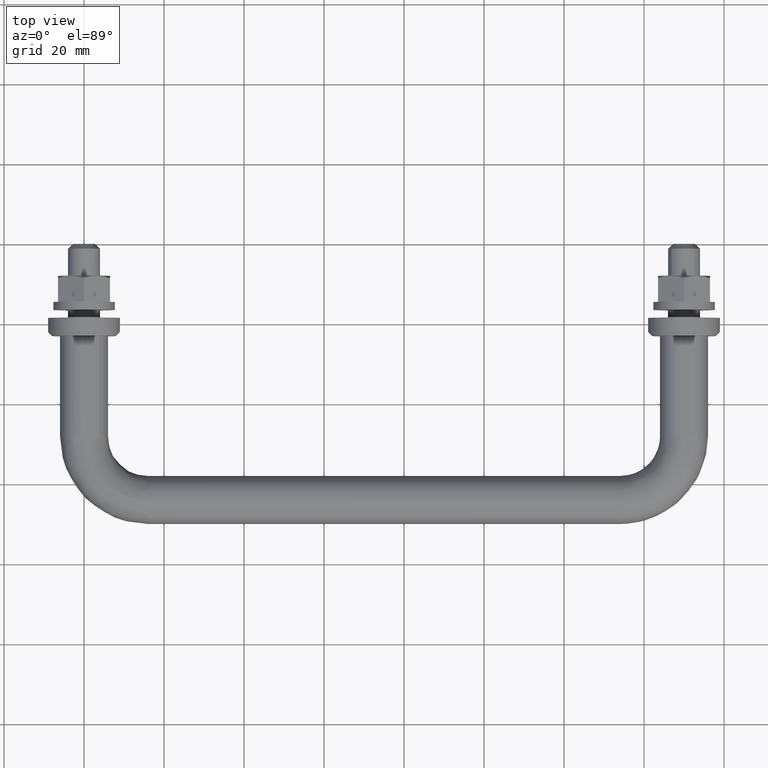
[diagram: clean part render]
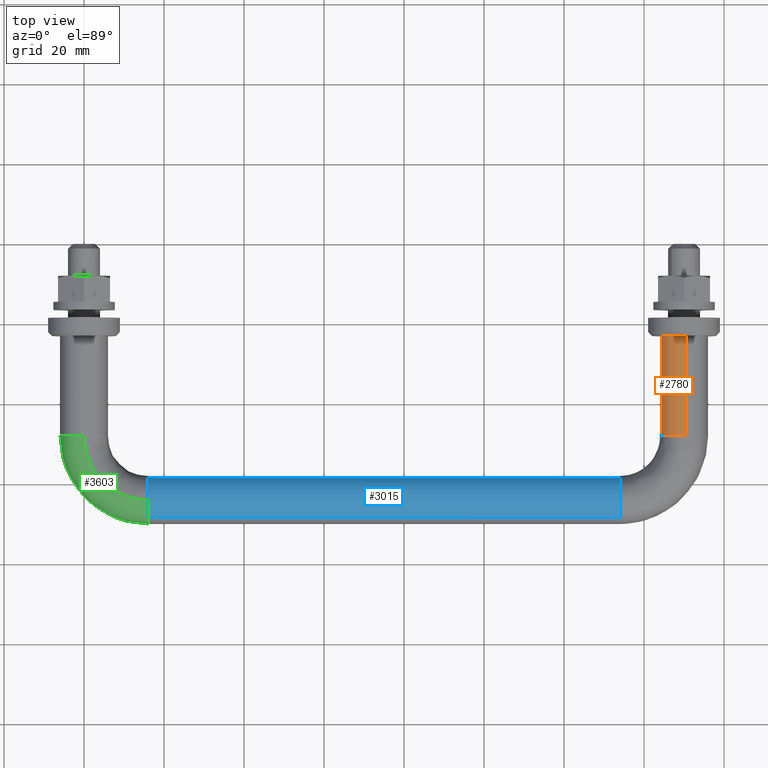
[diagram: same view with three faces highlighted in distinct colors, each labeled with its STEP entity id]
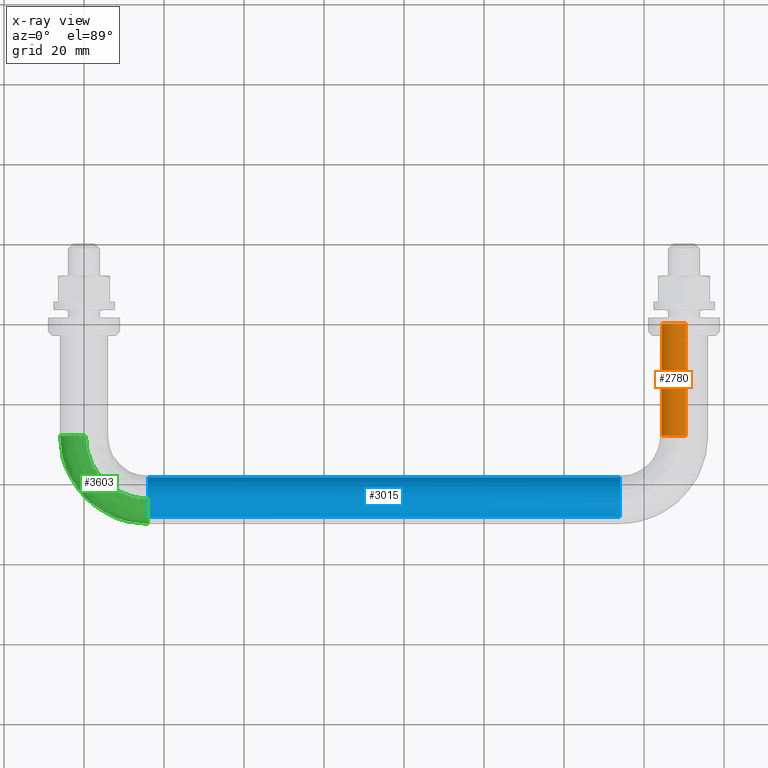
[diagram: x-ray of the same camera — body ghosted, the three highlighted faces saturated]
A machine part, top view with three faces highlighted in distinct colors.
The next image is the same camera in x-ray (body ghosted, the three faces saturated) — at least one of them is partly hidden behind the body in this view.
Their STEP definitions:

[orange] entity #2780 — the highlighted face is a freeform B-spline surface patch.
#2716=CARTESIAN_POINT('',(144.420813481346610,-28.700000000797552,2.207414276948618));
#2717=CARTESIAN_POINT('',(146.051642595505910,-28.700000000797552,6.329295657784252));
#2718=CARTESIAN_POINT('',(150.470754574367110,-28.700000000797559,5.981504002398766));
#2719=CARTESIAN_POINT('',(144.420813481346610,0.717500000019957,2.207414276948618));
#2720=CARTESIAN_POINT('',(146.051642595505910,0.717500000019957,6.329295657784252));
#2721=CARTESIAN_POINT('',(150.470754574367110,0.717500000019957,5.981504002398766));
#2729=(BOUNDED_SURFACE()B_SPLINE_SURFACE(2,1,((#2716,#2719),(#2717,#2720),(#2718,#2721)),.UNSPECIFIED.,.F.,.F.,.U.)B_SPLINE_SURFACE_WITH_KNOTS((3,3),(2,2),(0.0,7.898692343319910),(0.0,29.417500000817508),.UNSPECIFIED.)GEOMETRIC_REPRESENTATION_ITEM()RATIONAL_B_SPLINE_SURFACE(((0.906274169979695,0.906274169979695),(0.765685424949238,0.765685424949238),(1.0,1.0)))REPRESENTATION_ITEM('')SURFACE());
#2730=CARTESIAN_POINT('',(150.470754574535900,-28.0,5.981504002385480));
#2731=VERTEX_POINT('',#2730);
#2732=CARTESIAN_POINT('',(144.420813481355000,-28.0,2.207414276969677));
#2733=VERTEX_POINT('',#2732);
#2734=CARTESIAN_POINT('',(150.470754574535850,-27.999999999999996,5.981504002385480));
#2735=CARTESIAN_POINT('',(150.235740642215600,-27.999999999999996,6.0));
#2736=CARTESIAN_POINT('',(150.0,-28.0,6.0));
#2737=CARTESIAN_POINT('',(145.921356229614560,-27.999999999999993,5.999999999999999));
#2738=CARTESIAN_POINT('',(144.420813481354910,-28.000000000000007,2.207414276969677));
#2746=(BOUNDED_CURVE()B_SPLINE_CURVE(2,(#2734,#2735,#2736,#2737,#2738),.UNSPECIFIED.,.F.,.U.)B_SPLINE_CURVE_WITH_KNOTS((3,2,3),(0.736331300623090,0.750000000000000,0.937532549938274),.UNSPECIFIED.)CURVE()GEOMETRIC_REPRESENTATION_ITEM()RATIONAL_B_SPLINE_CURVE((0.969723356151621,0.983986122570014,1.0,0.780291951265138,0.890203187499966))REPRESENTATION_ITEM(''));
#2747=EDGE_CURVE('',#2731,#2733,#2746,.T.);
#2748=ORIENTED_EDGE('',*,*,#2747,.F.);
#2749=CARTESIAN_POINT('',(150.470754574535900,1.705580E-014,5.981504002385480));
#2750=VERTEX_POINT('',#2749);
#2751=CARTESIAN_POINT('',(150.470754574535900,-28.0,5.981504002385480));
#2752=CARTESIAN_POINT('',(150.470754574535900,1.705580E-014,5.981504002385480));
#2753=QUASI_UNIFORM_CURVE('',1,(#2751,#2752),.UNSPECIFIED.,.F.,.U.);
#2754=EDGE_CURVE('',#2731,#2750,#2753,.T.);
#2755=ORIENTED_EDGE('',*,*,#2754,.T.);
#2756=CARTESIAN_POINT('',(144.420813481355000,1.706515E-014,2.207414276969677));
#2757=VERTEX_POINT('',#2756);
#2758=CARTESIAN_POINT('',(150.470754574535990,1.705580E-014,5.981504002385480));
#2759=CARTESIAN_POINT('',(150.235740642215720,1.734723E-014,6.000000000000001));
#2760=CARTESIAN_POINT('',(150.0,1.734723E-014,6.0));
#2761=CARTESIAN_POINT('',(145.921356229614620,1.734723E-014,6.0));
#2762=CARTESIAN_POINT('',(144.420813481354880,1.706515E-014,2.207414276969677));
#2770=(BOUNDED_CURVE()B_SPLINE_CURVE(2,(#2758,#2759,#2760,#2761,#2762),.UNSPECIFIED.,.F.,.U.)B_SPLINE_CURVE_WITH_KNOTS((3,2,3),(0.736331300623089,0.750000000000000,0.937532549938273),.UNSPECIFIED.)CURVE()GEOMETRIC_REPRESENTATION_ITEM()RATIONAL_B_SPLINE_CURVE((0.969723356151619,0.983986122570013,1.0,0.780291951265139,0.890203187499965))REPRESENTATION_ITEM(''));
#2771=EDGE_CURVE('',#2750,#2757,#2770,.T.);
#2772=ORIENTED_EDGE('',*,*,#2771,.T.);
#2773=CARTESIAN_POINT('',(144.420813481355000,-28.0,2.207414276969677));
#2774=CARTESIAN_POINT('',(144.420813481355000,1.706515E-014,2.207414276969677));
#2775=QUASI_UNIFORM_CURVE('',1,(#2773,#2774),.UNSPECIFIED.,.F.,.U.);
#2776=EDGE_CURVE('',#2733,#2757,#2775,.T.);
#2777=ORIENTED_EDGE('',*,*,#2776,.F.);
#2778=EDGE_LOOP('',(#2748,#2755,#2772,#2777));
#2779=FACE_OUTER_BOUND('',#2778,.T.);
#2780=ADVANCED_FACE('',(#2779),#2729,.T.);

[blue] entity #3015 — the highlighted face is a freeform B-spline surface patch.
#2932=CARTESIAN_POINT('',(13.049999999366786,-38.342843064116067,1.999143667368710));
#2933=CARTESIAN_POINT('',(13.049999999366788,-38.841979626746074,3.411595365225981));
#2934=CARTESIAN_POINT('',(13.049999999366779,-39.946458754306043,4.423664020860743));
#2935=CARTESIAN_POINT('',(13.049999999366785,-44.370122775166784,8.477205266554705));
#2936=CARTESIAN_POINT('',(13.049999999366779,-48.423664020860741,4.053541245693961));
#2937=CARTESIAN_POINT('',(137.023750000015890,-38.342843064116060,1.999143667368710));
#2938=CARTESIAN_POINT('',(137.023750000015810,-38.841979626746046,3.411595365225981));
#2939=CARTESIAN_POINT('',(137.023750000015810,-39.946458754306022,4.423664020860743));
#2940=CARTESIAN_POINT('',(137.023750000015840,-44.370122775166770,8.477205266554705));
#2941=CARTESIAN_POINT('',(137.023750000015810,-48.423664020860727,4.053541245693961));
#2949=(BOUNDED_SURFACE()B_SPLINE_SURFACE(2,1,((#2932,#2937),(#2933,#2938),(#2934,#2939),(#2935,#2940),(#2936,#2941)),.UNSPECIFIED.,.F.,.F.,.U.)B_SPLINE_SURFACE_WITH_KNOTS((3,2,3),(2,2),(0.0,3.181160159025369,13.122285655979651),(0.0,123.973750000649100),.UNSPECIFIED.)GEOMETRIC_REPRESENTATION_ITEM()RATIONAL_B_SPLINE_SURFACE(((0.872532871172385,0.872532871172385),(0.906274169979695,0.906274169979695),(1.0,1.0),(0.707106781186548,0.707106781186548),(1.0,1.0)))REPRESENTATION_ITEM('')SURFACE());
#2950=CARTESIAN_POINT('',(134.0,-48.423666147043868,4.053538925369788));
#2951=VERTEX_POINT('',#2950);
#2952=CARTESIAN_POINT('',(134.0,-38.342843064154778,1.999143667478238));
#2953=VERTEX_POINT('',#2952);
#2954=CARTESIAN_POINT('',(134.000000000000030,-48.423666147043868,4.053538925369788));
#2955=CARTESIAN_POINT('',(133.999999999999940,-46.640065063585460,6.0));
#2956=CARTESIAN_POINT('',(134.0,-44.0,6.0));
#2957=CARTESIAN_POINT('',(134.000000000000090,-39.756678086383872,6.0));
#2958=CARTESIAN_POINT('',(134.000000000000060,-38.342843064154778,1.999143667478238));
#2966=(BOUNDED_CURVE()B_SPLINE_CURVE(2,(#2954,#2955,#2956,#2957,#2958),.UNSPECIFIED.,.F.,.U.)B_SPLINE_CURVE_WITH_KNOTS((3,2,3),(0.618415129901655,0.750000000000000,0.943388783513534),.UNSPECIFIED.)CURVE()GEOMETRIC_REPRESENTATION_ITEM()RATIONAL_B_SPLINE_CURVE((0.853959790611737,0.845838735398983,1.0,0.773430946857213,0.897389202267200))REPRESENTATION_ITEM(''));
#2967=EDGE_CURVE('',#2951,#2953,#2966,.T.);
#2968=ORIENTED_EDGE('',*,*,#2967,.T.);
#2969=CARTESIAN_POINT('',(16.0,-38.342843064154792,1.999143667478240));
#2970=VERTEX_POINT('',#2969);
#2971=CARTESIAN_POINT('',(16.0,-38.342843064154792,1.999143667478240));
#2972=CARTESIAN_POINT('',(134.0,-38.342843064154778,1.999143667478238));
#2973=QUASI_UNIFORM_CURVE('',1,(#2971,#2972),.UNSPECIFIED.,.F.,.U.);
#2974=EDGE_CURVE('',#2970,#2953,#2973,.T.);
#2975=ORIENTED_EDGE('',*,*,#2974,.F.);
#2976=CARTESIAN_POINT('',(15.999999999937650,-44.075396240160970,5.999526265212078));
#2977=VERTEX_POINT('',#2976);
#2978=CARTESIAN_POINT('',(15.999999999937648,-44.075396240160970,5.999526265212078));
#2979=CARTESIAN_POINT('',(16.000000000000004,-44.037699608812304,6.000000000000001));
#2980=CARTESIAN_POINT('',(16.0,-44.0,6.0));
#2981=CARTESIAN_POINT('',(15.999999999999995,-39.756678086383836,6.0));
#2982=CARTESIAN_POINT('',(16.000000000000004,-38.342843064154792,1.999143667478241));
#2990=(BOUNDED_CURVE()B_SPLINE_CURVE(2,(#2978,#2979,#2980,#2981,#2982),.UNSPECIFIED.,.F.,.U.)B_SPLINE_CURVE_WITH_KNOTS((3,2,3),(0.747784295871259,0.750000000000000,0.943388783513534),.UNSPECIFIED.)CURVE()GEOMETRIC_REPRESENTATION_ITEM()RATIONAL_B_SPLINE_CURVE((0.994854295527851,0.997404141143179,1.0,0.773430946857212,0.897389202267201))REPRESENTATION_ITEM(''));
#2991=EDGE_CURVE('',#2977,#2970,#2990,.T.);
#2992=ORIENTED_EDGE('',*,*,#2991,.F.);
#2993=CARTESIAN_POINT('',(15.999999999983400,-48.423666334145452,4.053538721060258));
#2994=VERTEX_POINT('',#2993);
#2995=CARTESIAN_POINT('',(15.999999999983405,-48.423666334145452,4.053538721060259));
#2996=CARTESIAN_POINT('',(15.999999999964956,-46.670382015393436,5.966914994870200));
#2997=CARTESIAN_POINT('',(15.999999999937653,-44.075396240160970,5.999526265212078));
#3005=(BOUNDED_CURVE()B_SPLINE_CURVE(2,(#2995,#2996,#2997),.UNSPECIFIED.,.F.,.U.)B_SPLINE_CURVE_WITH_KNOTS((3,3),(0.618415122927454,0.747784295871258),.UNSPECIFIED.)CURVE()GEOMETRIC_REPRESENTATION_ITEM()RATIONAL_B_SPLINE_CURVE((0.853959791472594,0.845975474519957,0.994854295527850))REPRESENTATION_ITEM(''));
#3006=EDGE_CURVE('',#2994,#2977,#3005,.T.);
#3007=ORIENTED_EDGE('',*,*,#3006,.F.);
#3008=CARTESIAN_POINT('',(15.999999999983400,-48.423666334145452,4.053538721060258));
#3009=CARTESIAN_POINT('',(134.0,-48.423666147043868,4.053538925369788));
#3010=QUASI_UNIFORM_CURVE('',1,(#3008,#3009),.UNSPECIFIED.,.F.,.U.);
#3011=EDGE_CURVE('',#2994,#2951,#3010,.T.);
#3012=ORIENTED_EDGE('',*,*,#3011,.T.);
#3013=EDGE_LOOP('',(#2968,#2975,#2992,#3007,#3012));
#3014=FACE_OUTER_BOUND('',#3013,.T.);
#3015=ADVANCED_FACE('',(#3014),#2949,.T.);

[green] entity #3603 — the highlighted face is a freeform B-spline surface patch.
#2976=CARTESIAN_POINT('',(15.999999999937650,-44.075396240160970,5.999526265212078));
#2977=VERTEX_POINT('',#2976);
#2993=CARTESIAN_POINT('',(15.999999999983400,-48.423666334145452,4.053538721060258));
#2994=VERTEX_POINT('',#2993);
#2995=CARTESIAN_POINT('',(15.999999999983405,-48.423666334145452,4.053538721060259));
#2996=CARTESIAN_POINT('',(15.999999999964956,-46.670382015393436,5.966914994870200));
#2997=CARTESIAN_POINT('',(15.999999999937653,-44.075396240160970,5.999526265212078));
#3005=(BOUNDED_CURVE()B_SPLINE_CURVE(2,(#2995,#2996,#2997),.UNSPECIFIED.,.F.,.U.)B_SPLINE_CURVE_WITH_KNOTS((3,3),(0.618415122927454,0.747784295871258),.UNSPECIFIED.)CURVE()GEOMETRIC_REPRESENTATION_ITEM()RATIONAL_B_SPLINE_CURVE((0.853959791472594,0.845975474519957,0.994854295527850))REPRESENTATION_ITEM(''));
#3006=EDGE_CURVE('',#2994,#2977,#3005,.T.);
#3114=CARTESIAN_POINT('',(16.0,-49.999999999999993,0.0));
#3115=VERTEX_POINT('',#3114);
#3116=CARTESIAN_POINT('',(16.0,-49.999999999999993,0.0));
#3117=CARTESIAN_POINT('',(16.000000000000007,-49.999999999999993,2.333270420019758));
#3118=CARTESIAN_POINT('',(15.999999999983405,-48.423666334145452,4.053538721060259));
#3126=(BOUNDED_CURVE()B_SPLINE_CURVE(2,(#3116,#3117,#3118),.UNSPECIFIED.,.F.,.U.)B_SPLINE_CURVE_WITH_KNOTS((3,3),(0.500000000000000,0.618415122927454),.UNSPECIFIED.)CURVE()GEOMETRIC_REPRESENTATION_ITEM()RATIONAL_B_SPLINE_CURVE((1.0,0.861268053958349,0.853959791472594))REPRESENTATION_ITEM(''));
#3127=EDGE_CURVE('',#3115,#2994,#3126,.T.);
#3129=CARTESIAN_POINT('',(15.999999999382229,-43.581600489776719,-5.985394042988725));
#3130=VERTEX_POINT('',#3129);
#3131=CARTESIAN_POINT('',(15.999999999382229,-43.581600489776719,-5.985394042988726));
#3132=CARTESIAN_POINT('',(15.999999999999998,-43.790545303978277,-6.000000000000002));
#3133=CARTESIAN_POINT('',(16.0,-44.0,-6.0));
#3134=CARTESIAN_POINT('',(15.999999999999998,-49.999999999999986,-6.0));
#3135=CARTESIAN_POINT('',(16.0,-49.999999999999993,0.0));
#3143=(BOUNDED_CURVE()B_SPLINE_CURVE(2,(#3131,#3132,#3133,#3134,#3135),.UNSPECIFIED.,.F.,.U.)B_SPLINE_CURVE_WITH_KNOTS((3,2,3),(0.237833686490849,0.250000000000000,0.500000000000000),.UNSPECIFIED.)CURVE()GEOMETRIC_REPRESENTATION_ITEM()RATIONAL_B_SPLINE_CURVE((0.972879876293399,0.985746277100845,1.0,0.707106781186548,1.0))REPRESENTATION_ITEM(''));
#3144=EDGE_CURVE('',#3130,#3115,#3143,.T.);
#3200=CARTESIAN_POINT('',(-0.075396240607989,-28.000000000148141,5.999526265206460));
#3201=VERTEX_POINT('',#3200);
#3258=CARTESIAN_POINT('',(-3.735087819827943,-28.0,-4.695648941112710));
#3259=VERTEX_POINT('',#3258);
#3265=CARTESIAN_POINT('',(-5.999999999999996,-28.0,0.0));
#3266=VERTEX_POINT('',#3265);
#3267=CARTESIAN_POINT('',(-3.735087819827943,-28.000000000000004,-4.695648941112710));
#3268=CARTESIAN_POINT('',(-5.999999999999997,-28.000000000000007,-2.894056444901910));
#3269=CARTESIAN_POINT('',(-5.999999999999996,-28.0,0.0));
#3277=(BOUNDED_CURVE()B_SPLINE_CURVE(2,(#3267,#3268,#3269),.UNSPECIFIED.,.F.,.U.)B_SPLINE_CURVE_WITH_KNOTS((3,3),(0.357863877391589,0.500000000000000),.UNSPECIFIED.)CURVE()GEOMETRIC_REPRESENTATION_ITEM()RATIONAL_B_SPLINE_CURVE((0.856305618644024,0.833477174158236,1.0))REPRESENTATION_ITEM(''));
#3278=EDGE_CURVE('',#3259,#3266,#3277,.T.);
#3280=CARTESIAN_POINT('',(-5.999999999999996,-28.0,0.0));
#3281=CARTESIAN_POINT('',(-5.999999999999996,-28.0,5.925071576860362));
#3282=CARTESIAN_POINT('',(-0.075396240607989,-28.000000000148141,5.999526265206460));
#3290=(BOUNDED_CURVE()B_SPLINE_CURVE(2,(#3280,#3281,#3282),.UNSPECIFIED.,.F.,.U.)B_SPLINE_CURVE_WITH_KNOTS((3,3),(0.500000000000000,0.747784295845050),.UNSPECIFIED.)CURVE()GEOMETRIC_REPRESENTATION_ITEM()RATIONAL_B_SPLINE_CURVE((1.0,0.709702640074074,0.994854295467530))REPRESENTATION_ITEM(''));
#3291=EDGE_CURVE('',#3266,#3201,#3290,.T.);
#3333=CARTESIAN_POINT('',(0.418399511246949,-28.000000001151069,-5.985394042917166));
#3334=VERTEX_POINT('',#3333);
#3348=CARTESIAN_POINT('',(0.418399511246949,-28.000000001151072,-5.985394042917166));
#3349=CARTESIAN_POINT('',(0.209454697049138,-27.999999999999996,-5.999999999999999));
#3350=CARTESIAN_POINT('',(3.428898E-015,-28.0,-6.0));
#3351=CARTESIAN_POINT('',(-2.095293800532434,-28.0,-6.0));
#3352=CARTESIAN_POINT('',(-3.735087819827943,-28.000000000000004,-4.695648941112710));
#3360=(BOUNDED_CURVE()B_SPLINE_CURVE(2,(#3348,#3349,#3350,#3351,#3352),.UNSPECIFIED.,.F.,.U.)B_SPLINE_CURVE_WITH_KNOTS((3,2,3),(0.237833686432021,0.250000000000000,0.357863877391589),.UNSPECIFIED.)CURVE()GEOMETRIC_REPRESENTATION_ITEM()RATIONAL_B_SPLINE_CURVE((0.972879876168973,0.985746277031924,1.0,0.873629607028311,0.856305618644024))REPRESENTATION_ITEM(''));
#3361=EDGE_CURVE('',#3334,#3259,#3360,.T.);
#3534=CARTESIAN_POINT('',(0.546685115469526,-26.922813507950277,-5.979047656540755));
#3535=CARTESIAN_POINT('',(-0.691926059755248,-44.691926518107586,-5.979047656540754));
#3536=CARTESIAN_POINT('',(17.077186916390389,-43.453314854951444,-5.979047656540756));
#3537=CARTESIAN_POINT('',(0.501270332774384,-26.919647831794439,-5.982230005926366));
#3538=CARTESIAN_POINT('',(-0.740980919533328,-44.740981379232686,-5.982230005926365));
#3539=CARTESIAN_POINT('',(17.080352593793297,-43.498729637559656,-5.982230005926369));
#3540=CARTESIAN_POINT('',(0.285231963537030,-26.904588693037091,-5.997368459328781));
#3541=CARTESIAN_POINT('',(-0.974335155328387,-44.974335621435536,-5.997368459328783));
#3542=CARTESIAN_POINT('',(17.095411738482944,-43.714768006383508,-5.997368459328781));
#3543=CARTESIAN_POINT('',(0.113943897119562,-26.892648912299236,-5.999526265222896));
#3544=CARTESIAN_POINT('',(-1.159352270486051,-45.159352741673686,-5.999526265222896));
#3545=CARTESIAN_POINT('',(17.107351523924276,-43.886056072473103,-5.999526265222895));
#3546=CARTESIAN_POINT('',(-5.871059703111108,-26.475459132552292,-6.074922504523007));
#3547=CARTESIAN_POINT('',(-7.624064748611073,-51.624065397316620,-6.074922504523005));
#3548=CARTESIAN_POINT('',(17.524541468016576,-49.871059661247941,-6.074922504523006));
#3549=CARTESIAN_POINT('',(-5.946273435613747,-26.470216295188671,-0.075396239300112));
#3550=CARTESIAN_POINT('',(-7.705306997992081,-51.705307648928503,-0.075396239300112));
#3551=CARTESIAN_POINT('',(17.529784307445532,-49.946273393606596,-0.075396239300112));
#3552=CARTESIAN_POINT('',(-6.021487168116381,-26.464973457825039,5.924130025922782));
#3553=CARTESIAN_POINT('',(-7.786549247373084,-51.786549900540393,5.924130025922781));
#3554=CARTESIAN_POINT('',(17.535027146874498,-50.021487125965294,5.924130025922783));
#3555=CARTESIAN_POINT('',(0.007550832205726,-26.885232692981290,6.000080989729094));
#3556=CARTESIAN_POINT('',(-1.274272932239360,-45.274273406582665,6.000080989729093));
#3557=CARTESIAN_POINT('',(17.114767746163732,-43.992449137183286,6.000080989729092));
#3558=CARTESIAN_POINT('',(0.051317652982240,-26.888283496546265,6.000632343397877));
#3559=CARTESIAN_POINT('',(-1.226998121512281,-45.226998594557429,6.000632343397878));
#3560=CARTESIAN_POINT('',(17.111716941396942,-43.948682316490540,6.000632343397876));
#3568=(BOUNDED_SURFACE()B_SPLINE_SURFACE(2,2,((#3534,#3537,#3540,#3543,#3546,#3549,#3552,#3555,#3558),(#3535,#3538,#3541,#3544,#3547,#3550,#3553,#3556,#3559),(#3536,#3539,#3542,#3545,#3548,#3551,#3554,#3557,#3560)),.UNSPECIFIED.,.F.,.F.,.U.)B_SPLINE_SURFACE_WITH_KNOTS((3,3),(3,1,2,2,1,3),(0.0,40.091364059811198),(0.0,0.103627271967900,0.501271912622229,10.442397409576509,20.383522906530789,20.487276651345081),.UNSPECIFIED.)GEOMETRIC_REPRESENTATION_ITEM()RATIONAL_B_SPLINE_SURFACE(((0.896240571068163,0.898830835225127,0.911360612797192,0.922164430830710,0.652068722409428,0.922164430830710,0.652068722409428,0.924983371323470,0.927802311816230),(0.588135431092798,0.589835227080369,0.598057579841146,0.605147314876259,0.427903769965834,0.605147314876259,0.427903769965834,0.606997173982680,0.608847033089101),(0.896240582280474,0.898830846469842,0.911360624198660,0.922164442367337,0.652068730567055,0.922164442367337,0.652068730567055,0.924983382895364,0.927802323423390)))REPRESENTATION_ITEM('')SURFACE());
#3569=ORIENTED_EDGE('',*,*,#3144,.T.);
#3570=ORIENTED_EDGE('',*,*,#3127,.T.);
#3571=ORIENTED_EDGE('',*,*,#3006,.T.);
#3572=CARTESIAN_POINT('',(-0.075396240607989,-28.000000000148145,5.999526265206460));
#3573=CARTESIAN_POINT('',(-0.075396239003828,-44.075396239175426,5.999526265222895));
#3574=CARTESIAN_POINT('',(15.999999999937646,-44.075396240160970,5.999526265212078));
#3582=(BOUNDED_CURVE()B_SPLINE_CURVE(2,(#3572,#3573,#3574),.UNSPECIFIED.,.F.,.U.)B_SPLINE_CURVE_WITH_KNOTS((3,3),(-1.744561813296183,-0.255438186692578),.UNSPECIFIED.)CURVE()GEOMETRIC_REPRESENTATION_ITEM()RATIONAL_B_SPLINE_CURVE((0.894678510035584,0.632633241437720,0.894678510039540))REPRESENTATION_ITEM(''));
#3583=EDGE_CURVE('',#3201,#2977,#3582,.T.);
#3584=ORIENTED_EDGE('',*,*,#3583,.F.);
#3585=ORIENTED_EDGE('',*,*,#3291,.F.);
#3586=ORIENTED_EDGE('',*,*,#3278,.F.);
#3587=ORIENTED_EDGE('',*,*,#3361,.F.);
#3588=CARTESIAN_POINT('',(0.418399511246949,-28.000000001151065,-5.985394042917167));
#3589=CARTESIAN_POINT('',(0.418399511754792,-43.581600489311825,-5.985394043042596));
#3590=CARTESIAN_POINT('',(15.999999999382235,-43.581600489776712,-5.985394042988726));
#3598=(BOUNDED_CURVE()B_SPLINE_CURVE(2,(#3588,#3589,#3590),.UNSPECIFIED.,.F.,.U.)B_SPLINE_CURVE_WITH_KNOTS((3,3),(-1.744561813160017,-0.255438186767904),.UNSPECIFIED.)CURVE()GEOMETRIC_REPRESENTATION_ITEM()RATIONAL_B_SPLINE_CURVE((0.874553433359680,0.618402663317575,0.874553433384477))REPRESENTATION_ITEM(''));
#3599=EDGE_CURVE('',#3334,#3130,#3598,.T.);
#3600=ORIENTED_EDGE('',*,*,#3599,.T.);
#3601=EDGE_LOOP('',(#3569,#3570,#3571,#3584,#3585,#3586,#3587,#3600));
#3602=FACE_OUTER_BOUND('',#3601,.T.);
#3603=ADVANCED_FACE('',(#3602),#3568,.T.);